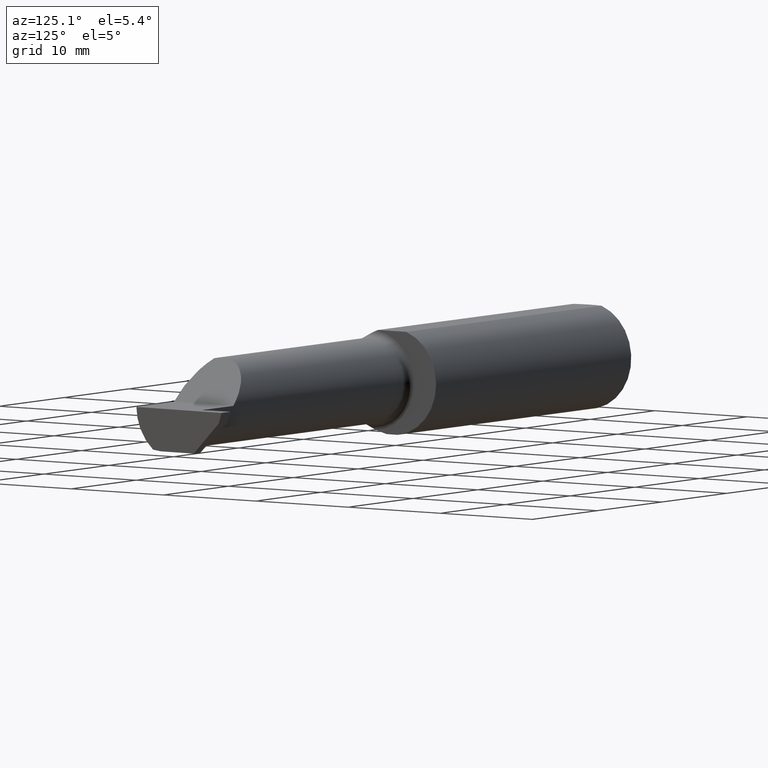
[diagram: clean part render]
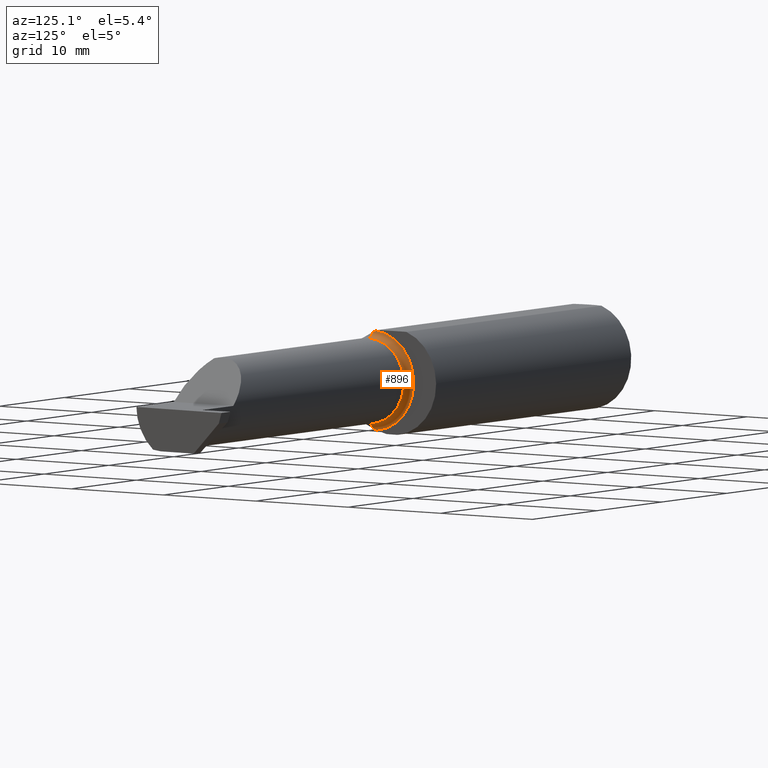
[diagram: same view with one face highlighted and labeled with its STEP entity id]
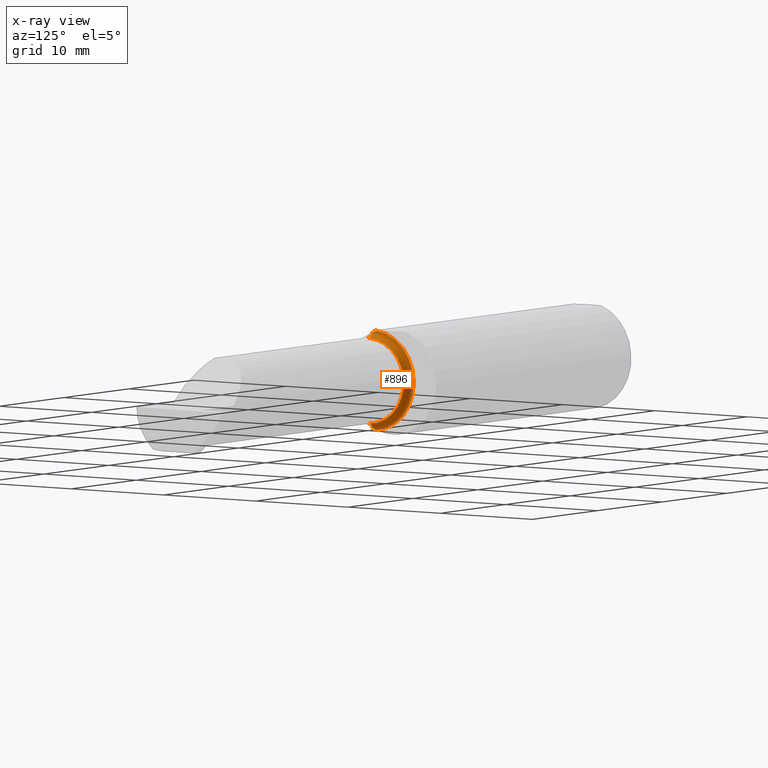
[diagram: x-ray of the same camera — body ghosted, the highlighted face saturated]
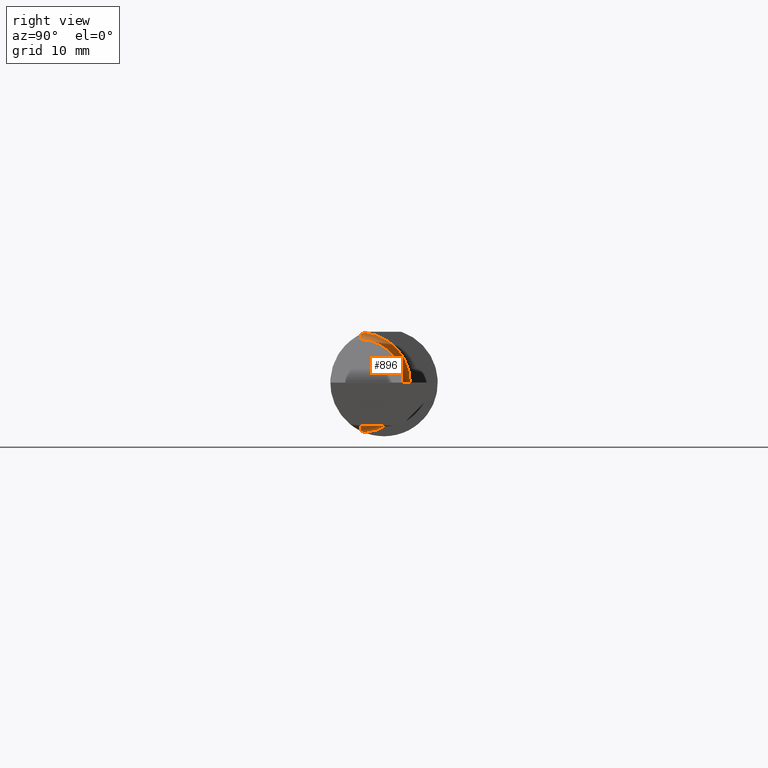
[diagram: same view with one face highlighted and labeled with its STEP entity id]
A machine part, auxiliary view. The second image highlights one B-rep face of the part: STEP entity #896.
The next image is the same camera in x-ray: the body ghosted, the highlighted face saturated — about 0% of this face is hidden behind the body in this view.
A second angle (right view) of the same face is appended — the face is thin or edge-on in the first view.
In plain terms, the highlighted toroidal blend (fillet) surface has major radius 4.445 mm and minor (blend) radius 0.635 mm.
Its self-contained STEP definition (entity closure, byte-faithful):
#4 = CIRCLE ( 'NONE', #587, 0.1749999999999999889 ) ;
#21 = CARTESIAN_POINT ( 'NONE',  ( 1.225000000000000089, -0.08334999999999996578, 0.1499999999999999944 ) ) ;
#53 = ORIENTED_EDGE ( 'NONE', *, *, #545, .T. ) ;
#76 = VERTEX_POINT ( 'NONE', #489 ) ;
#109 = CARTESIAN_POINT ( 'NONE',  ( 1.199999999999999956, -0.07359296612170562746, -0.1723769398647691520 ) ) ;
#146 = CARTESIAN_POINT ( 'NONE',  ( 1.199999999999999956, -0.08334999999999996578, 0.000000000000000000 ) ) ;
#183 = CARTESIAN_POINT ( 'NONE',  ( 1.199999999999999956, -0.06851976604679065053, -0.1743704796142198643 ) ) ;
#186 = VERTEX_POINT ( 'NONE', #21 ) ;
#196 = ORIENTED_EDGE ( 'NONE', *, *, #971, .F. ) ;
#231 = B_SPLINE_CURVE_WITH_KNOTS ( 'NONE', 3,
 ( #252, #441, #109, #183 ),
 .UNSPECIFIED., .F., .F.,
 ( 4, 4 ),
 ( 0.001278539404338893291, 0.001694873732696241956 ),
 .UNSPECIFIED. ) ;
#242 = VERTEX_POINT ( 'NONE', #526 ) ;
#252 = CARTESIAN_POINT ( 'NONE',  ( 1.201062863587535334, -0.08334999999999988252, -0.1677879614275112896 ) ) ;
#257 = VERTEX_POINT ( 'NONE', #774 ) ;
#298 = CARTESIAN_POINT ( 'NONE',  ( 1.200344683557281300, -0.07855153123406184712, 0.1701716388274757685 ) ) ;
#305 = CARTESIAN_POINT ( 'NONE',  ( 1.199999999999999956, -0.06851976604679065053, -0.1743704796142198643 ) ) ;
#308 = VERTEX_POINT ( 'NONE', #305 ) ;
#324 = DIRECTION ( 'NONE',  ( 0.000000000000000000, 0.000000000000000000, 1.000000000000000000 ) ) ;
#367 = CIRCLE ( 'NONE', #907, 0.1499999999999999944 ) ;
#383 = DIRECTION ( 'NONE',  ( 0.000000000000000000, 0.000000000000000000, -1.000000000000000000 ) ) ;
#424 = EDGE_LOOP ( 'NONE', ( #196, #777, #754, #1023, #479, #53 ) ) ;
#433 = CARTESIAN_POINT ( 'NONE',  ( 1.225000000000000089, -0.08334999999999996578, 0.000000000000000000 ) ) ;
#441 = CARTESIAN_POINT ( 'NONE',  ( 1.200346246588684940, -0.07856197451716394331, -0.1701664510438046507 ) ) ;
#464 = DIRECTION ( 'NONE',  ( 0.000000000000000000, 0.000000000000000000, 1.000000000000000000 ) ) ;
#473 = DIRECTION ( 'NONE',  ( 0.000000000000000000, 0.000000000000000000, 1.000000000000000000 ) ) ;
#479 = ORIENTED_EDGE ( 'NONE', *, *, #743, .T. ) ;
#489 = CARTESIAN_POINT ( 'NONE',  ( 1.225000000000000089, -0.08334999999999995191, -0.1499999999999999944 ) ) ;
#526 = CARTESIAN_POINT ( 'NONE',  ( 1.201062863587533780, -0.08334999999998814191, 0.1677879614275171460 ) ) ;
#545 = EDGE_CURVE ( 'NONE', #186, #76, #367, .T. ) ;
#554 = FACE_OUTER_BOUND ( 'NONE', #424, .T. ) ;
#587 = AXIS2_PLACEMENT_3D ( 'NONE', #146, #949, #464 ) ;
#595 = EDGE_CURVE ( 'NONE', #906, #308, #231, .T. ) ;
#600 = B_SPLINE_CURVE_WITH_KNOTS ( 'NONE', 3,
 ( #1030, #779, #298, #871 ),
 .UNSPECIFIED., .F., .F.,
 ( 4, 4 ),
 ( 4.423516731080792778E-05, 0.0004561457252213473078 ),
 .UNSPECIFIED. ) ;
#606 = DIRECTION ( 'NONE',  ( 0.000000000000000000, -1.000000000000000000, 0.000000000000000000 ) ) ;
#624 = AXIS2_PLACEMENT_3D ( 'NONE', #959, #881, #473 ) ;
#692 = CARTESIAN_POINT ( 'NONE',  ( 1.225000000000000089, -0.08334999999999995191, 0.1749999999999999889 ) ) ;
#724 = CIRCLE ( 'NONE', #913, 0.02500000000000007425 ) ;
#731 = CARTESIAN_POINT ( 'NONE',  ( 1.225000000000000089, -0.08334999999999995191, 0.000000000000000000 ) ) ;
#743 = EDGE_CURVE ( 'NONE', #242, #186, #724, .T. ) ;
#754 = ORIENTED_EDGE ( 'NONE', *, *, #778, .F. ) ;
#769 = EDGE_CURVE ( 'NONE', #257, #242, #600, .T. ) ;
#774 = CARTESIAN_POINT ( 'NONE',  ( 1.199999999999999956, -0.06851976604679065053, 0.1743704796142198643 ) ) ;
#777 = ORIENTED_EDGE ( 'NONE', *, *, #595, .T. ) ;
#778 = EDGE_CURVE ( 'NONE', #257, #308, #4, .T. ) ;
#779 = CARTESIAN_POINT ( 'NONE',  ( 1.199999999999999734, -0.07360907839729496915, 0.1723706084642000480 ) ) ;
#783 = DIRECTION ( 'NONE',  ( -1.000000000000000000, -0.000000000000000000, -0.000000000000000000 ) ) ;
#807 = DIRECTION ( 'NONE',  ( -1.000000000000000000, -0.000000000000000000, -0.000000000000000000 ) ) ;
#819 = CARTESIAN_POINT ( 'NONE',  ( 1.201062863587535334, -0.08334999999999988252, -0.1677879614275112896 ) ) ;
#866 = CIRCLE ( 'NONE', #624, 0.02500000000000007425 ) ;
#869 = DIRECTION ( 'NONE',  ( 0.000000000000000000, 0.000000000000000000, 1.000000000000000000 ) ) ;
#871 = CARTESIAN_POINT ( 'NONE',  ( 1.201062863587533780, -0.08334999999998814191, 0.1677879614275171460 ) ) ;
#881 = DIRECTION ( 'NONE',  ( -0.000000000000000000, 1.000000000000000000, 1.224646799147353207E-16 ) ) ;
#896 = ADVANCED_FACE ( 'NONE', ( #554 ), #944, .F. ) ;
#906 = VERTEX_POINT ( 'NONE', #819 ) ;
#907 = AXIS2_PLACEMENT_3D ( 'NONE', #433, #783, #869 ) ;
#913 = AXIS2_PLACEMENT_3D ( 'NONE', #692, #606, #383 ) ;
#944 = TOROIDAL_SURFACE ( 'NONE', #997, 0.1749999999999999889, 0.02500000000000007425 ) ;
#949 = DIRECTION ( 'NONE',  ( -1.000000000000000000, -0.000000000000000000, -0.000000000000000000 ) ) ;
#959 = CARTESIAN_POINT ( 'NONE',  ( 1.225000000000000089, -0.08334999999999992415, -0.1749999999999999889 ) ) ;
#971 = EDGE_CURVE ( 'NONE', #906, #76, #866, .T. ) ;
#997 = AXIS2_PLACEMENT_3D ( 'NONE', #731, #807, #324 ) ;
#1023 = ORIENTED_EDGE ( 'NONE', *, *, #769, .T. ) ;
#1030 = CARTESIAN_POINT ( 'NONE',  ( 1.199999999999999956, -0.06851976604679065053, 0.1743704796142198643 ) ) ;